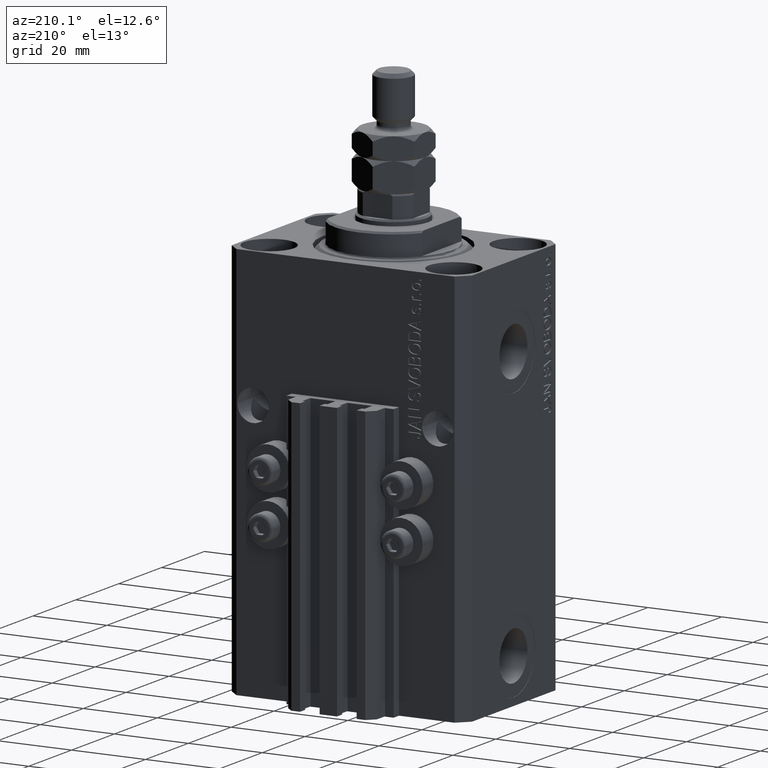
[diagram: clean part render]
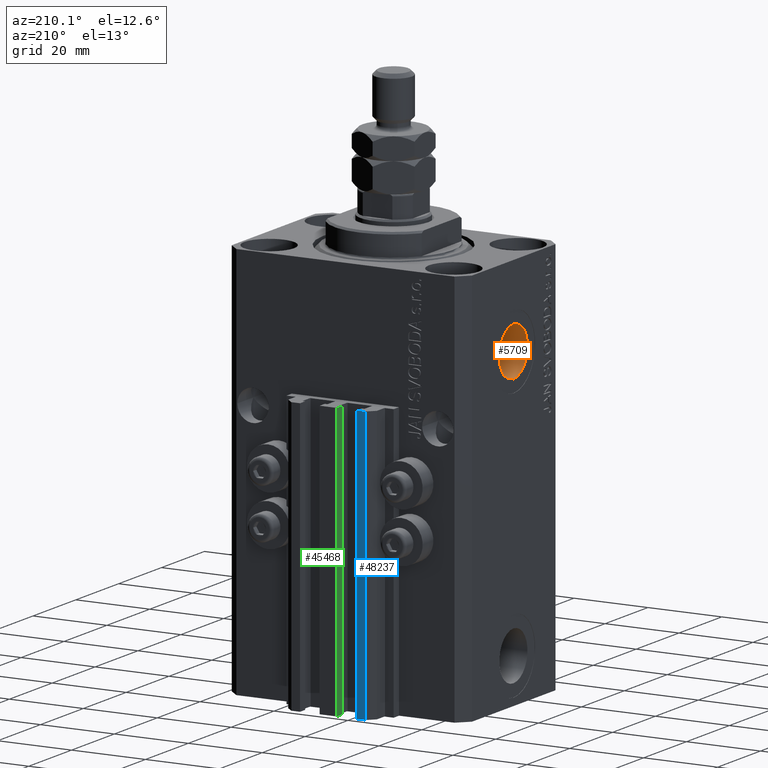
[diagram: same view with three faces highlighted in distinct colors, each labeled with its STEP entity id]
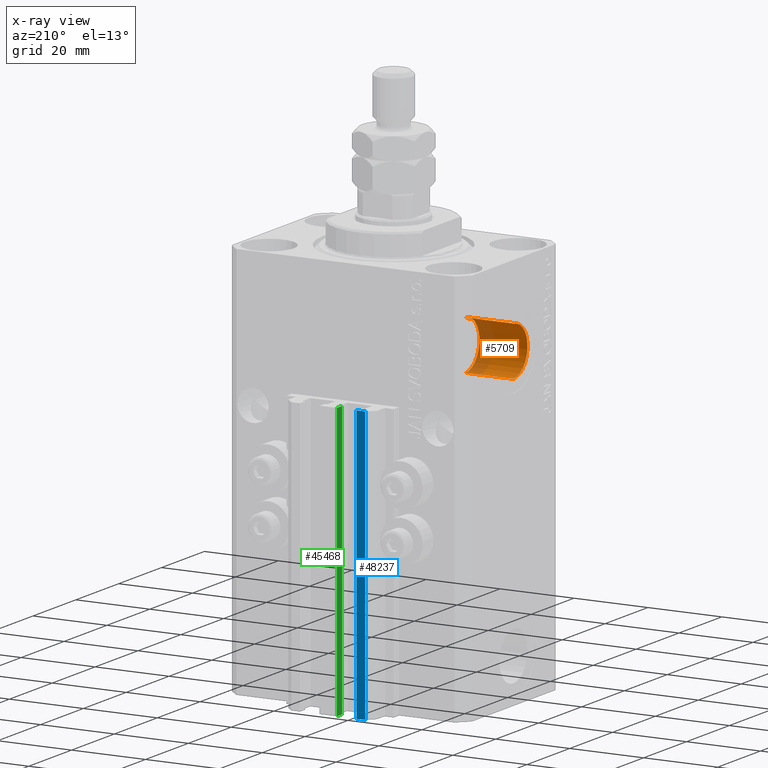
[diagram: x-ray of the same camera — body ghosted, the three highlighted faces saturated]
A machine part, auxiliary view with three faces highlighted in distinct colors.
The next image is the same camera in x-ray (body ghosted, the three faces saturated) — at least one of them is partly hidden behind the body in this view.
Their STEP definitions:

[orange] entity #5709 — the highlighted cylindrical surface (edge-blend (fillet) strip) has radius 6.58 mm, axis along (-1, -0, -0).
#1451 = AXIS2_PLACEMENT_3D ( 'NONE', #46181, #38952, #23258 ) ;
#1652 = AXIS2_PLACEMENT_3D ( 'NONE', #3823, #3576, #30204 ) ;
#3505 = VECTOR ( 'NONE', #43117, 1000.000000000000000 ) ;
#3576 = DIRECTION ( 'NONE',  ( -1.000000000000000000, -0.000000000000000000, -0.000000000000000000 ) ) ;
#3823 = CARTESIAN_POINT ( 'NONE',  ( -19.39999999999650271, 0.000000000000000000, -22.00000000000000000 ) ) ;
#3960 = VERTEX_POINT ( 'NONE', #28726 ) ;
#5709 = ADVANCED_FACE ( 'NONE', ( #37695 ), #49172, .F. ) ;
#6272 = ORIENTED_EDGE ( 'NONE', *, *, #35832, .T. ) ;
#8001 = VERTEX_POINT ( 'NONE', #28384 ) ;
#15937 = DIRECTION ( 'NONE',  ( -1.000000000000000000, -0.000000000000000000, -0.000000000000000000 ) ) ;
#17080 = EDGE_LOOP ( 'NONE', ( #37444, #40789, #6272, #32636 ) ) ;
#23258 = DIRECTION ( 'NONE',  ( 0.000000000000000000, 0.000000000000000000, 1.000000000000000000 ) ) ;
#23715 = CARTESIAN_POINT ( 'NONE',  ( -19.39999999999650271, 8.058175938389579572E-16, -28.57999999999999829 ) ) ;
#26505 = EDGE_CURVE ( 'NONE', #34609, #8001, #47569, .T. ) ;
#26936 = CARTESIAN_POINT ( 'NONE',  ( -19.39999999999650271, 8.058175938389580558E-16, -28.57999999999999829 ) ) ;
#27747 = EDGE_CURVE ( 'NONE', #34609, #3960, #39143, .T. ) ;
#27832 = VECTOR ( 'NONE', #15937, 1000.000000000000000 ) ;
#27945 = VERTEX_POINT ( 'NONE', #28033 ) ;
#28033 = CARTESIAN_POINT ( 'NONE',  ( -32.39999999999650271, 0.000000000000000000, -15.41999999999999993 ) ) ;
#28384 = CARTESIAN_POINT ( 'NONE',  ( -19.39999999999650271, 0.000000000000000000, -15.41999999999999993 ) ) ;
#28726 = CARTESIAN_POINT ( 'NONE',  ( -32.39999999999650271, 8.058175938389579572E-16, -28.57999999999999829 ) ) ;
#29221 = AXIS2_PLACEMENT_3D ( 'NONE', #34634, #42108, #38870 ) ;
#30204 = DIRECTION ( 'NONE',  ( 0.000000000000000000, 0.000000000000000000, 1.000000000000000000 ) ) ;
#32636 = ORIENTED_EDGE ( 'NONE', *, *, #45581, .F. ) ;
#34000 = CIRCLE ( 'NONE', #29221, 6.579999999999999183 ) ;
#34609 = VERTEX_POINT ( 'NONE', #23715 ) ;
#34634 = CARTESIAN_POINT ( 'NONE',  ( -32.39999999999650271, 0.000000000000000000, -22.00000000000000000 ) ) ;
#35832 = EDGE_CURVE ( 'NONE', #3960, #27945, #34000, .T. ) ;
#37444 = ORIENTED_EDGE ( 'NONE', *, *, #26505, .F. ) ;
#37695 = FACE_OUTER_BOUND ( 'NONE', #17080, .T. ) ;
#38623 = LINE ( 'NONE', #42601, #27832 ) ;
#38870 = DIRECTION ( 'NONE',  ( 0.000000000000000000, 0.000000000000000000, 1.000000000000000000 ) ) ;
#38952 = DIRECTION ( 'NONE',  ( -1.000000000000000000, 0.000000000000000000, 0.000000000000000000 ) ) ;
#39143 = LINE ( 'NONE', #26936, #3505 ) ;
#40789 = ORIENTED_EDGE ( 'NONE', *, *, #27747, .T. ) ;
#42108 = DIRECTION ( 'NONE',  ( -1.000000000000000000, 0.000000000000000000, 0.000000000000000000 ) ) ;
#42601 = CARTESIAN_POINT ( 'NONE',  ( -19.39999999999650271, 0.000000000000000000, -15.41999999999999993 ) ) ;
#43117 = DIRECTION ( 'NONE',  ( -1.000000000000000000, -0.000000000000000000, -0.000000000000000000 ) ) ;
#45581 = EDGE_CURVE ( 'NONE', #8001, #27945, #38623, .T. ) ;
#46181 = CARTESIAN_POINT ( 'NONE',  ( -19.39999999999650271, 0.000000000000000000, -22.00000000000000000 ) ) ;
#47569 = CIRCLE ( 'NONE', #1451, 6.579999999999999183 ) ;
#49172 = CYLINDRICAL_SURFACE ( 'NONE', #1652, 6.579999999999999183 ) ;

[blue] entity #48237 — the highlighted planar face has unit normal (0, 1, 0).
#2195 = VERTEX_POINT ( 'NONE', #21902 ) ;
#2940 = DIRECTION ( 'NONE',  ( -1.000000000000000000, 1.476360405086644852E-15, 0.000000000000000000 ) ) ;
#3442 = CARTESIAN_POINT ( 'NONE',  ( -7.650000000000000355, 30.49999999999948486, -107.0000000000000000 ) ) ;
#4173 = VERTEX_POINT ( 'NONE', #3442 ) ;
#4427 = CARTESIAN_POINT ( 'NONE',  ( -10.00000000000000000, 30.49999999999948841, -107.0000000000000000 ) ) ;
#9073 = EDGE_CURVE ( 'NONE', #32651, #22679, #17484, .T. ) ;
#9752 = FACE_OUTER_BOUND ( 'NONE', #17687, .T. ) ;
#10237 = DIRECTION ( 'NONE',  ( -1.000000000000000000, 1.476360405086644852E-15, 0.000000000000000000 ) ) ;
#10239 = CARTESIAN_POINT ( 'NONE',  ( -7.650000000000000355, 30.49999999999948486, -33.00000000000000000 ) ) ;
#10421 = AXIS2_PLACEMENT_3D ( 'NONE', #24939, #13238, #10237 ) ;
#12194 = CARTESIAN_POINT ( 'NONE',  ( -10.00000000000000000, 30.49999999999948841, -33.00000000000000000 ) ) ;
#13238 = DIRECTION ( 'NONE',  ( 1.476360405086644852E-15, 1.000000000000000000, -0.000000000000000000 ) ) ;
#13920 = CARTESIAN_POINT ( 'NONE',  ( -7.650000000000000355, 30.49999999999948486, -107.0000000000000000 ) ) ;
#14208 = EDGE_CURVE ( 'NONE', #4173, #32651, #48076, .T. ) ;
#15618 = DIRECTION ( 'NONE',  ( 0.000000000000000000, 0.000000000000000000, 1.000000000000000000 ) ) ;
#16351 = LINE ( 'NONE', #4427, #31001 ) ;
#17484 = LINE ( 'NONE', #43910, #36742 ) ;
#17687 = EDGE_LOOP ( 'NONE', ( #36881, #19702, #19577, #33547 ) ) ;
#17697 = VECTOR ( 'NONE', #25134, 1000.000000000000000 ) ;
#17864 = CARTESIAN_POINT ( 'NONE',  ( -7.650000000000000355, 30.49999999999948486, -107.0000000000000000 ) ) ;
#19577 = ORIENTED_EDGE ( 'NONE', *, *, #29155, .T. ) ;
#19702 = ORIENTED_EDGE ( 'NONE', *, *, #14208, .F. ) ;
#21902 = CARTESIAN_POINT ( 'NONE',  ( -10.00000000000000000, 30.49999999999948841, -107.0000000000000000 ) ) ;
#22679 = VERTEX_POINT ( 'NONE', #12194 ) ;
#24939 = CARTESIAN_POINT ( 'NONE',  ( -7.650000000000000355, 30.49999999999948486, -107.0000000000000000 ) ) ;
#25134 = DIRECTION ( 'NONE',  ( 0.000000000000000000, 0.000000000000000000, 1.000000000000000000 ) ) ;
#29155 = EDGE_CURVE ( 'NONE', #4173, #2195, #48528, .T. ) ;
#30580 = VECTOR ( 'NONE', #2940, 1000.000000000000000 ) ;
#31001 = VECTOR ( 'NONE', #15618, 1000.000000000000000 ) ;
#32651 = VERTEX_POINT ( 'NONE', #10239 ) ;
#33170 = DIRECTION ( 'NONE',  ( -1.000000000000000000, 1.476360405086644852E-15, 0.000000000000000000 ) ) ;
#33547 = ORIENTED_EDGE ( 'NONE', *, *, #44792, .T. ) ;
#36742 = VECTOR ( 'NONE', #33170, 1000.000000000000000 ) ;
#36881 = ORIENTED_EDGE ( 'NONE', *, *, #9073, .F. ) ;
#43892 = PLANE ( 'NONE',  #10421 ) ;
#43910 = CARTESIAN_POINT ( 'NONE',  ( -7.650000000000000355, 30.49999999999948486, -33.00000000000000000 ) ) ;
#44792 = EDGE_CURVE ( 'NONE', #2195, #22679, #16351, .T. ) ;
#48076 = LINE ( 'NONE', #13920, #17697 ) ;
#48237 = ADVANCED_FACE ( 'NONE', ( #9752 ), #43892, .T. ) ;
#48528 = LINE ( 'NONE', #17864, #30580 ) ;

[green] entity #45468 — the highlighted planar face has unit normal (-1, 0, 0).
#3465 = EDGE_LOOP ( 'NONE', ( #41829, #26545, #23318, #11683 ) ) ;
#4872 = VECTOR ( 'NONE', #6278, 1000.000000000000000 ) ;
#6062 = LINE ( 'NONE', #21236, #35765 ) ;
#6278 = DIRECTION ( 'NONE',  ( 0.000000000000000000, 0.000000000000000000, 1.000000000000000000 ) ) ;
#6827 = EDGE_CURVE ( 'NONE', #37243, #15019, #25181, .T. ) ;
#8480 = VECTOR ( 'NONE', #13736, 1000.000000000000000 ) ;
#10029 = DIRECTION ( 'NONE',  ( 0.000000000000000000, 0.000000000000000000, 1.000000000000000000 ) ) ;
#10121 = CARTESIAN_POINT ( 'NONE',  ( -2.350000000000003197, 30.49999999999949907, -33.00000000000000000 ) ) ;
#10786 = CARTESIAN_POINT ( 'NONE',  ( -2.350000000000003197, 30.49999999999949907, -107.0000000000000000 ) ) ;
#11021 = DIRECTION ( 'NONE',  ( -1.000000000000000000, 0.000000000000000000, 0.000000000000000000 ) ) ;
#11683 = ORIENTED_EDGE ( 'NONE', *, *, #6827, .T. ) ;
#13736 = DIRECTION ( 'NONE',  ( 0.000000000000000000, 0.000000000000000000, 1.000000000000000000 ) ) ;
#15019 = VERTEX_POINT ( 'NONE', #36972 ) ;
#17476 = CARTESIAN_POINT ( 'NONE',  ( -2.350000000000003197, 30.49999999999949907, -107.0000000000000000 ) ) ;
#18007 = PLANE ( 'NONE',  #19883 ) ;
#19883 = AXIS2_PLACEMENT_3D ( 'NONE', #40923, #11021, #10029 ) ;
#20724 = EDGE_CURVE ( 'NONE', #40293, #15019, #24609, .T. ) ;
#21236 = CARTESIAN_POINT ( 'NONE',  ( -2.350000000000003197, 30.49999999999949907, -107.0000000000000000 ) ) ;
#23318 = ORIENTED_EDGE ( 'NONE', *, *, #44076, .T. ) ;
#24609 = LINE ( 'NONE', #38851, #29853 ) ;
#25181 = LINE ( 'NONE', #41373, #4872 ) ;
#26545 = ORIENTED_EDGE ( 'NONE', *, *, #33397, .F. ) ;
#28939 = LINE ( 'NONE', #17476, #8480 ) ;
#29853 = VECTOR ( 'NONE', #43545, 1000.000000000000000 ) ;
#32928 = DIRECTION ( 'NONE',  ( 0.000000000000000000, -1.000000000000000000, 0.000000000000000000 ) ) ;
#33397 = EDGE_CURVE ( 'NONE', #47908, #40293, #28939, .T. ) ;
#35765 = VECTOR ( 'NONE', #32928, 1000.000000000000000 ) ;
#36972 = CARTESIAN_POINT ( 'NONE',  ( -2.350000000000003197, 28.09999999999950049, -33.00000000000000000 ) ) ;
#37243 = VERTEX_POINT ( 'NONE', #43756 ) ;
#38851 = CARTESIAN_POINT ( 'NONE',  ( -2.350000000000003197, 30.49999999999949907, -33.00000000000000000 ) ) ;
#40293 = VERTEX_POINT ( 'NONE', #10121 ) ;
#40923 = CARTESIAN_POINT ( 'NONE',  ( -2.350000000000003197, 30.49999999999949907, -107.0000000000000000 ) ) ;
#41373 = CARTESIAN_POINT ( 'NONE',  ( -2.350000000000003197, 28.09999999999950049, -107.0000000000000000 ) ) ;
#41829 = ORIENTED_EDGE ( 'NONE', *, *, #20724, .F. ) ;
#43545 = DIRECTION ( 'NONE',  ( 0.000000000000000000, -1.000000000000000000, 0.000000000000000000 ) ) ;
#43756 = CARTESIAN_POINT ( 'NONE',  ( -2.350000000000003197, 28.09999999999950049, -107.0000000000000000 ) ) ;
#44076 = EDGE_CURVE ( 'NONE', #47908, #37243, #6062, .T. ) ;
#45468 = ADVANCED_FACE ( 'NONE', ( #48171 ), #18007, .T. ) ;
#47908 = VERTEX_POINT ( 'NONE', #10786 ) ;
#48171 = FACE_OUTER_BOUND ( 'NONE', #3465, .T. ) ;